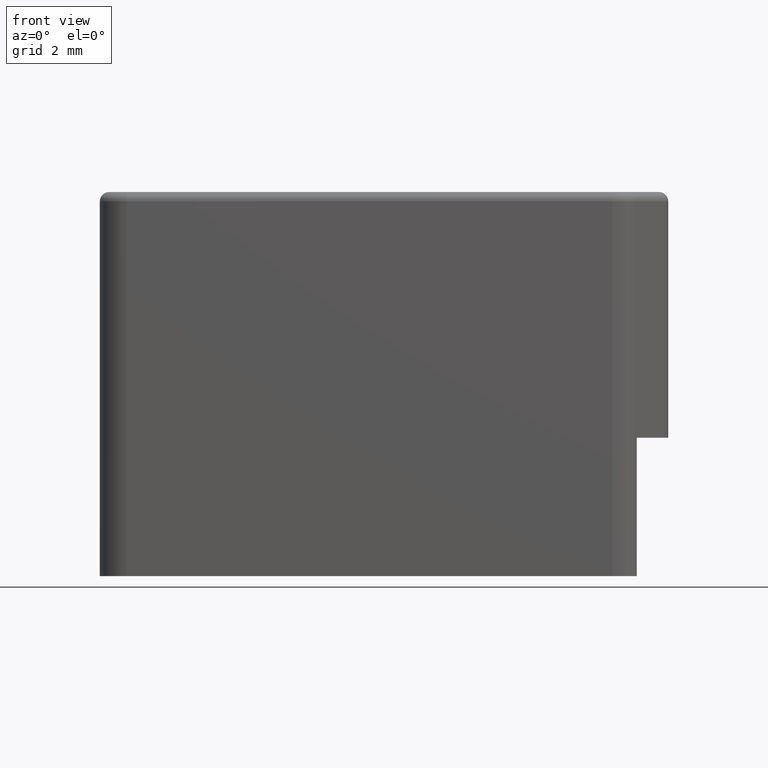
[diagram: clean part render]
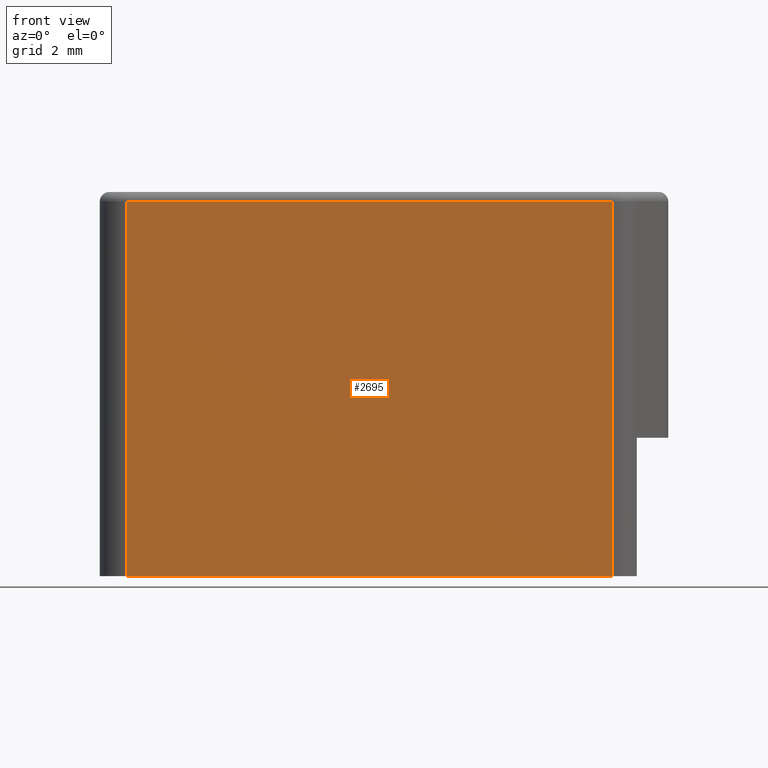
[diagram: same view with one face highlighted and labeled with its STEP entity id]
A machine part, front view. The second image highlights one B-rep face of the part: STEP entity #2695.
In plain terms, the highlighted planar face has unit normal (0, -1, 0).
Its self-contained STEP definition (entity closure, byte-faithful):
#218 = CARTESIAN_POINT ( 'NONE',  ( 217.5528882970909900, 142.5321278490893900, 34.50000000000000000 ) ) ;
#220 = DIRECTION ( 'NONE',  ( 0.0000000000000000000, 0.0000000000000000000, 1.000000000000000000 ) ) ;
#232 = LINE ( 'NONE', #218, #2218 ) ;
#272 = LINE ( 'NONE', #285, #2192 ) ;
#282 = LINE ( 'NONE', #290, #2198 ) ;
#283 = DIRECTION ( 'NONE',  ( 0.0000000000000000000, 0.0000000000000000000, 1.000000000000000000 ) ) ;
#285 = CARTESIAN_POINT ( 'NONE',  ( 217.5528882970909900, 142.5321278490893900, 40.64999999999999900 ) ) ;
#290 = CARTESIAN_POINT ( 'NONE',  ( 230.1989225198495000, 142.5321278490893900, 34.50000000000000000 ) ) ;
#292 = DIRECTION ( 'NONE',  ( -1.000000000000000000, -0.0000000000000000000, -0.0000000000000000000 ) ) ;
#634 = LINE ( 'NONE', #637, #2252 ) ;
#637 = CARTESIAN_POINT ( 'NONE',  ( 230.1989225198495000, 142.5321278490893900, 30.90000000000000200 ) ) ;
#638 = DIRECTION ( 'NONE',  ( -1.000000000000000000, 0.0000000000000000000, 0.0000000000000000000 ) ) ;
#1134 = ORIENTED_EDGE ( 'NONE', *, *, #2526, .T. ) ;
#1158 = ORIENTED_EDGE ( 'NONE', *, *, #2505, .F. ) ;
#1162 = ORIENTED_EDGE ( 'NONE', *, *, #2527, .T. ) ;
#1179 = ORIENTED_EDGE ( 'NONE', *, *, #2598, .F. ) ;
#1475 = CARTESIAN_POINT ( 'NONE',  ( 217.5528882970909900, 142.5321278490893900, 30.90000000000000200 ) ) ;
#1494 = CARTESIAN_POINT ( 'NONE',  ( 217.5528882970909900, 142.5321278490893900, 40.64999999999999900 ) ) ;
#1546 = CARTESIAN_POINT ( 'NONE',  ( 230.1989225198495000, 142.5321278490893900, 40.64999999999999900 ) ) ;
#1550 = CARTESIAN_POINT ( 'NONE',  ( 230.1989225198495000, 142.5321278490893900, 30.90000000000000200 ) ) ;
#1818 = EDGE_LOOP ( 'NONE', ( #1162, #1134, #1158, #1179 ) ) ;
#1903 = VERTEX_POINT ( 'NONE', #1475 ) ;
#1904 = VERTEX_POINT ( 'NONE', #1494 ) ;
#1958 = VERTEX_POINT ( 'NONE', #1550 ) ;
#1965 = VERTEX_POINT ( 'NONE', #1546 ) ;
#2192 = VECTOR ( 'NONE', #292, 1000.000000000000000 ) ;
#2198 = VECTOR ( 'NONE', #283, 1000.000000000000000 ) ;
#2218 = VECTOR ( 'NONE', #220, 1000.000000000000000 ) ;
#2252 = VECTOR ( 'NONE', #638, 1000.000000000000000 ) ;
#2384 = AXIS2_PLACEMENT_3D ( 'NONE', #2953, #2963, #2954 ) ;
#2505 = EDGE_CURVE ( 'NONE', #1903, #1904, #232, .T. ) ;
#2526 = EDGE_CURVE ( 'NONE', #1965, #1904, #272, .T. ) ;
#2527 = EDGE_CURVE ( 'NONE', #1958, #1965, #282, .T. ) ;
#2598 = EDGE_CURVE ( 'NONE', #1958, #1903, #634, .T. ) ;
#2695 = ADVANCED_FACE ( 'NONE', ( #2932 ), #2967, .T. ) ;
#2932 = FACE_OUTER_BOUND ( 'NONE', #1818, .T. ) ;
#2953 = CARTESIAN_POINT ( 'NONE',  ( 217.5528882970909900, 142.5321278490893900, 34.50000000000000000 ) ) ;
#2954 = DIRECTION ( 'NONE',  ( 0.0000000000000000000, 0.0000000000000000000, -1.000000000000000000 ) ) ;
#2963 = DIRECTION ( 'NONE',  ( 0.0000000000000000000, -1.000000000000000000, 0.0000000000000000000 ) ) ;
#2967 = PLANE ( 'NONE',  #2384 ) ;